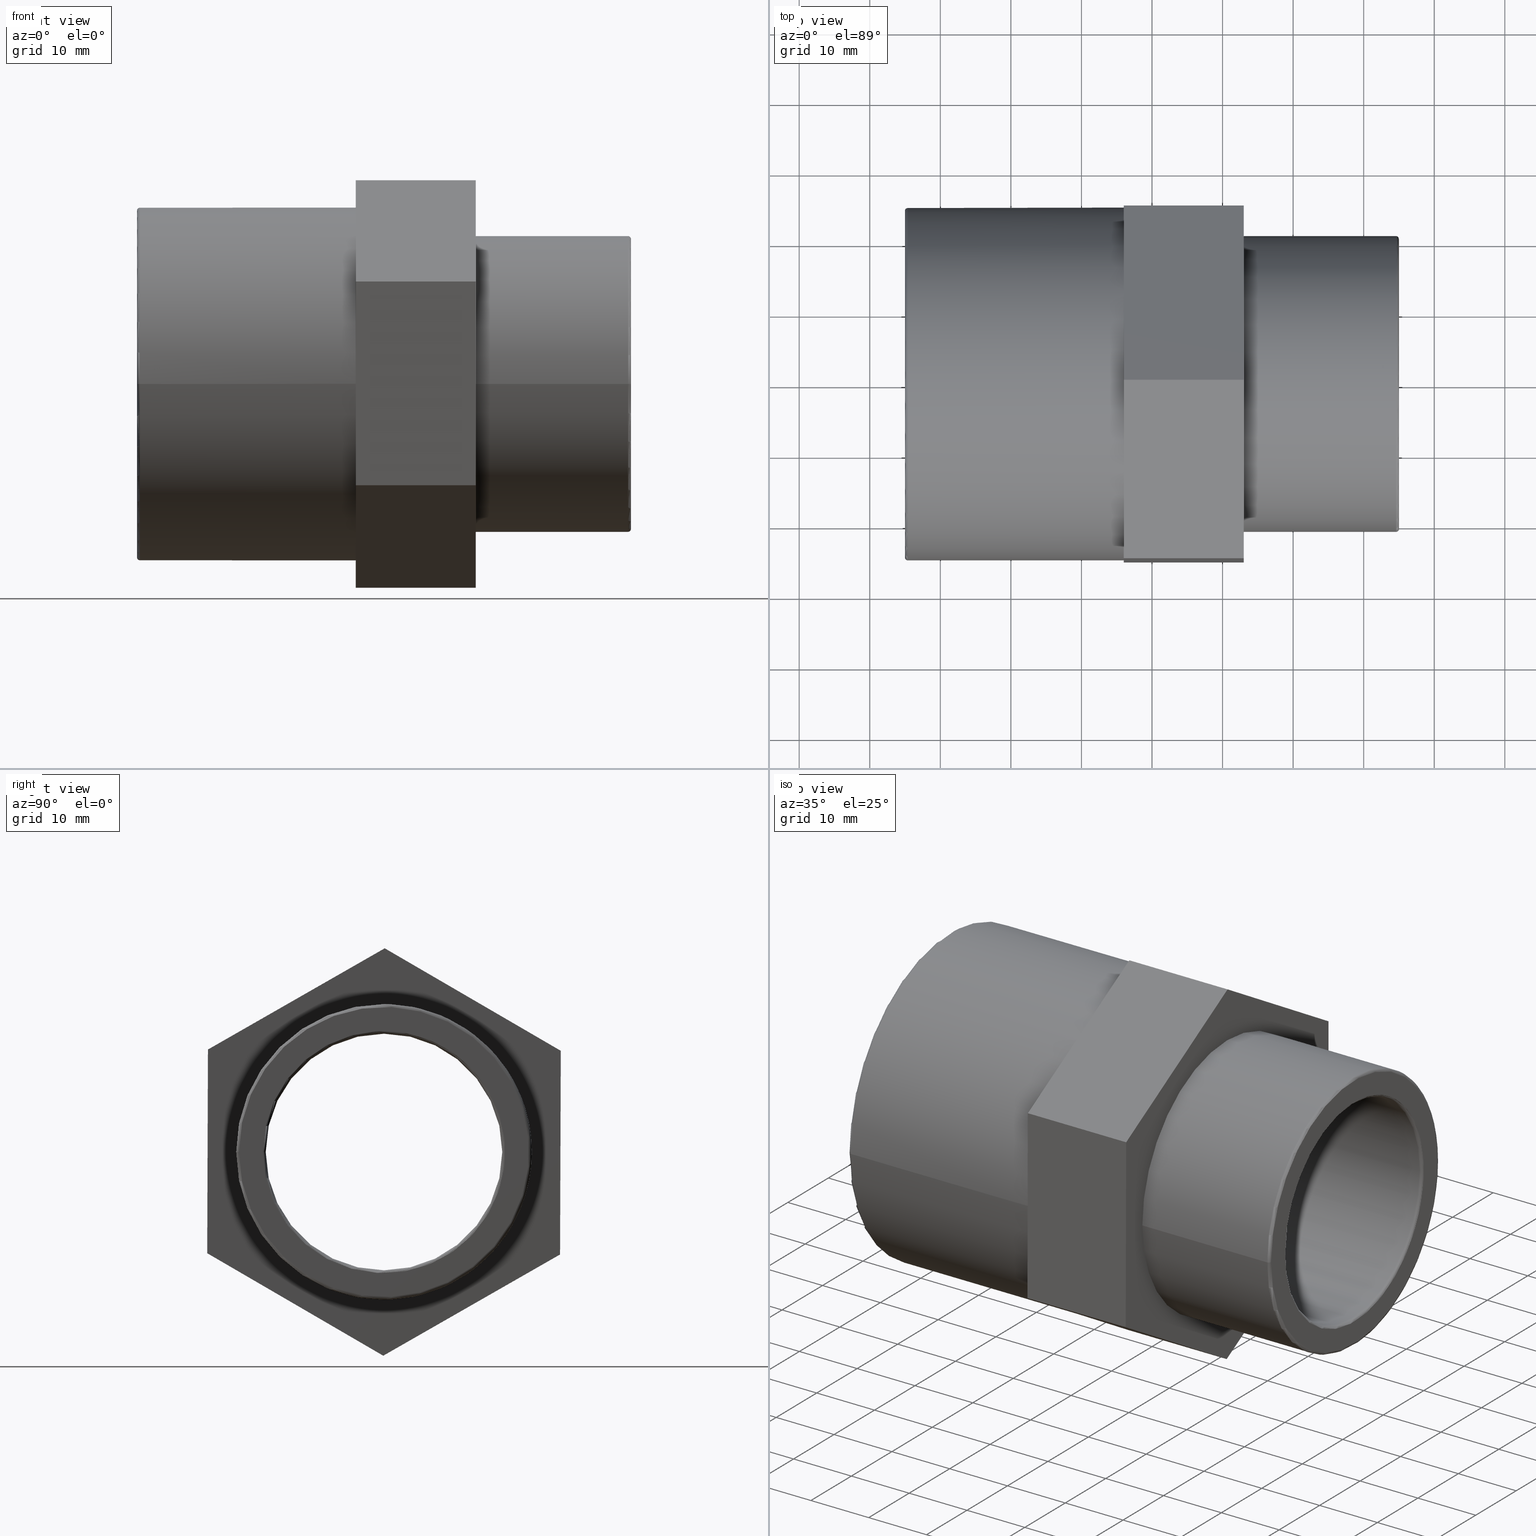
[diagram: canonical four-view strip — front | top / right | iso, engineering-drawing reading convention]
A machine part, canonical four-view strip (front | top / right | iso — engineering-drawing reading convention). The complete STEP part file that produces these views, byte-faithful:
ISO-10303-21;
HEADER;
/* Generated by software containing ST-Developer
 * from STEP Tools, Inc. (www.steptools.com) 
 */

FILE_DESCRIPTION(
/* description */ ('PLASSON SOCKET NIPPLE THR-CE 50(40)-1.1/4"'),
/* implementation_level */ '2;1');

FILE_NAME(
/* name */ 
'C:\\Dropbox\\KIMPROJECTS-Inventor\\99-16-3568-Processing\\PVC Catalog
 2017\\052102\\052102040013.ipt.stp',
/* time_stamp */ '2017-12-07T16:01:54+02:00',
/* author */ ('KIM'),
/* organization */ (''),
/* preprocessor_version */ 'ST-DEVELOPER v15.6',
/* originating_system */ 'Autodesk Inventor 2015',
/* authorisation */ '');

FILE_SCHEMA (('AUTOMOTIVE_DESIGN { 1 0 10303 214 3 1 1 }'));
ENDSEC;

DATA;
#10=MECHANICAL_DESIGN_GEOMETRIC_PRESENTATION_REPRESENTATION('',(#13),#641);
#11=SHAPE_REPRESENTATION_RELATIONSHIP('SRR','None',#650,#12);
#12=ADVANCED_BREP_SHAPE_REPRESENTATION($,(#14),#640);
#13=STYLED_ITEM('',(#659),#14);
#14=MANIFOLD_SOLID_BREP('Solid1',#374);
#15=CYLINDRICAL_SURFACE('',#399,16.764);
#16=CYLINDRICAL_SURFACE('',#403,20.955);
#17=CYLINDRICAL_SURFACE('',#410,20.);
#18=CYLINDRICAL_SURFACE('',#414,25.);
#19=CYLINDRICAL_SURFACE('',#417,19.);
#20=FACE_BOUND('',#96,.T.);
#21=FACE_BOUND('',#98,.T.);
#22=FACE_BOUND('',#100,.T.);
#23=FACE_BOUND('',#102,.T.);
#24=FACE_BOUND('',#104,.T.);
#25=FACE_BOUND('',#106,.T.);
#26=FACE_BOUND('',#108,.T.);
#27=FACE_BOUND('',#110,.T.);
#28=FACE_BOUND('',#112,.T.);
#29=FACE_BOUND('',#114,.T.);
#30=FACE_BOUND('',#116,.T.);
#31=FACE_BOUND('',#118,.T.);
#32=FACE_BOUND('',#120,.T.);
#33=FACE_BOUND('',#122,.T.);
#34=TOROIDAL_SURFACE('',#394,17.164,0.4);
#35=TOROIDAL_SURFACE('',#401,20.555,0.4);
#36=TOROIDAL_SURFACE('',#405,20.4,0.4);
#37=TOROIDAL_SURFACE('',#412,24.6,0.4);
#38=CIRCLE('',#380,25.);
#39=CIRCLE('',#382,25.);
#40=CIRCLE('',#384,25.);
#41=CIRCLE('',#386,25.);
#42=CIRCLE('',#388,25.);
#43=CIRCLE('',#390,25.);
#44=CIRCLE('',#395,16.764);
#45=CIRCLE('',#396,17.164);
#46=CIRCLE('',#398,20.555);
#47=CIRCLE('',#400,16.764);
#48=CIRCLE('',#402,20.955);
#49=CIRCLE('',#404,20.955);
#50=CIRCLE('',#406,20.4);
#51=CIRCLE('',#407,20.);
#52=CIRCLE('',#409,24.6);
#53=CIRCLE('',#411,20.);
#54=CIRCLE('',#413,25.);
#55=CIRCLE('',#416,19.);
#56=CIRCLE('',#418,19.);
#57=FACE_OUTER_BOUND('',#83,.T.);
#58=FACE_OUTER_BOUND('',#84,.T.);
#59=FACE_OUTER_BOUND('',#85,.T.);
#60=FACE_OUTER_BOUND('',#86,.T.);
#61=FACE_OUTER_BOUND('',#87,.T.);
#62=FACE_OUTER_BOUND('',#88,.T.);
#63=FACE_OUTER_BOUND('',#89,.T.);
#64=FACE_OUTER_BOUND('',#90,.T.);
#65=FACE_OUTER_BOUND('',#91,.T.);
#66=FACE_OUTER_BOUND('',#92,.T.);
#67=FACE_OUTER_BOUND('',#93,.T.);
#68=FACE_OUTER_BOUND('',#94,.T.);
#69=FACE_OUTER_BOUND('',#95,.T.);
#70=FACE_OUTER_BOUND('',#97,.T.);
#71=FACE_OUTER_BOUND('',#99,.T.);
#72=FACE_OUTER_BOUND('',#101,.T.);
#73=FACE_OUTER_BOUND('',#103,.T.);
#74=FACE_OUTER_BOUND('',#105,.T.);
#75=FACE_OUTER_BOUND('',#107,.T.);
#76=FACE_OUTER_BOUND('',#109,.T.);
#77=FACE_OUTER_BOUND('',#111,.T.);
#78=FACE_OUTER_BOUND('',#113,.T.);
#79=FACE_OUTER_BOUND('',#115,.T.);
#80=FACE_OUTER_BOUND('',#117,.T.);
#81=FACE_OUTER_BOUND('',#119,.T.);
#82=FACE_OUTER_BOUND('',#121,.T.);
#83=EDGE_LOOP('',(#245,#246,#247,#248,#249));
#84=EDGE_LOOP('',(#250,#251,#252,#253,#254));
#85=EDGE_LOOP('',(#255,#256,#257,#258,#259));
#86=EDGE_LOOP('',(#260,#261,#262));
#87=EDGE_LOOP('',(#263,#264,#265));
#88=EDGE_LOOP('',(#266,#267,#268));
#89=EDGE_LOOP('',(#269,#270,#271));
#90=EDGE_LOOP('',(#272,#273,#274));
#91=EDGE_LOOP('',(#275,#276,#277));
#92=EDGE_LOOP('',(#278,#279,#280,#281,#282));
#93=EDGE_LOOP('',(#283,#284,#285,#286,#287));
#94=EDGE_LOOP('',(#288,#289,#290,#291,#292));
#95=EDGE_LOOP('',(#293));
#96=EDGE_LOOP('',(#294));
#97=EDGE_LOOP('',(#295));
#98=EDGE_LOOP('',(#296));
#99=EDGE_LOOP('',(#297));
#100=EDGE_LOOP('',(#298));
#101=EDGE_LOOP('',(#299));
#102=EDGE_LOOP('',(#300));
#103=EDGE_LOOP('',(#301));
#104=EDGE_LOOP('',(#302));
#105=EDGE_LOOP('',(#303));
#106=EDGE_LOOP('',(#304));
#107=EDGE_LOOP('',(#305));
#108=EDGE_LOOP('',(#306));
#109=EDGE_LOOP('',(#307));
#110=EDGE_LOOP('',(#308));
#111=EDGE_LOOP('',(#309));
#112=EDGE_LOOP('',(#310));
#113=EDGE_LOOP('',(#311,#312,#313,#314,#315,#316));
#114=EDGE_LOOP('',(#317));
#115=EDGE_LOOP('',(#318));
#116=EDGE_LOOP('',(#319));
#117=EDGE_LOOP('',(#320));
#118=EDGE_LOOP('',(#321));
#119=EDGE_LOOP('',(#322));
#120=EDGE_LOOP('',(#323));
#121=EDGE_LOOP('',(#324,#325,#326,#327,#328,#329));
#122=EDGE_LOOP('',(#330));
#123=LINE('',#541,#147);
#124=LINE('',#543,#148);
#125=LINE('',#545,#149);
#126=LINE('',#547,#150);
#127=LINE('',#548,#151);
#128=LINE('',#551,#152);
#129=LINE('',#553,#153);
#130=LINE('',#555,#154);
#131=LINE('',#556,#155);
#132=LINE('',#559,#156);
#133=LINE('',#561,#157);
#134=LINE('',#563,#158);
#135=LINE('',#564,#159);
#136=LINE('',#568,#160);
#137=LINE('',#576,#161);
#138=LINE('',#581,#162);
#139=LINE('',#582,#163);
#140=LINE('',#586,#164);
#141=LINE('',#587,#165);
#142=LINE('',#591,#166);
#143=LINE('',#592,#167);
#144=LINE('',#593,#168);
#145=LINE('',#595,#169);
#146=LINE('',#597,#170);
#147=VECTOR('',#425,28.8675134594813);
#148=VECTOR('',#426,17.);
#149=VECTOR('',#427,14.4337567297406);
#150=VECTOR('',#428,14.4337567297407);
#151=VECTOR('',#429,17.);
#152=VECTOR('',#432,28.8675134594813);
#153=VECTOR('',#433,17.);
#154=VECTOR('',#434,14.4337567297407);
#155=VECTOR('',#435,14.4337567297406);
#156=VECTOR('',#438,28.8675134594813);
#157=VECTOR('',#439,17.);
#158=VECTOR('',#440,14.4337567297406);
#159=VECTOR('',#441,14.4337567297407);
#160=VECTOR('',#446,14.4337567297407);
#161=VECTOR('',#459,14.4337567297407);
#162=VECTOR('',#464,14.4337567297407);
#163=VECTOR('',#465,14.4337567297406);
#164=VECTOR('',#470,14.4337567297407);
#165=VECTOR('',#471,14.4337567297407);
#166=VECTOR('',#474,28.8675134594813);
#167=VECTOR('',#475,17.);
#168=VECTOR('',#476,17.);
#169=VECTOR('',#479,28.8675134594813);
#170=VECTOR('',#482,28.8675134594813);
#171=VERTEX_POINT('',#539);
#172=VERTEX_POINT('',#540);
#173=VERTEX_POINT('',#542);
#174=VERTEX_POINT('',#544);
#175=VERTEX_POINT('',#546);
#176=VERTEX_POINT('',#550);
#177=VERTEX_POINT('',#552);
#178=VERTEX_POINT('',#554);
#179=VERTEX_POINT('',#558);
#180=VERTEX_POINT('',#560);
#181=VERTEX_POINT('',#562);
#182=VERTEX_POINT('',#566);
#183=VERTEX_POINT('',#574);
#184=VERTEX_POINT('',#578);
#185=VERTEX_POINT('',#580);
#186=VERTEX_POINT('',#585);
#187=VERTEX_POINT('',#589);
#188=VERTEX_POINT('',#590);
#189=VERTEX_POINT('',#599);
#190=VERTEX_POINT('',#601);
#191=VERTEX_POINT('',#604);
#192=VERTEX_POINT('',#607);
#193=VERTEX_POINT('',#610);
#194=VERTEX_POINT('',#613);
#195=VERTEX_POINT('',#616);
#196=VERTEX_POINT('',#618);
#197=VERTEX_POINT('',#621);
#198=VERTEX_POINT('',#624);
#199=VERTEX_POINT('',#627);
#200=VERTEX_POINT('',#631);
#201=VERTEX_POINT('',#634);
#202=EDGE_CURVE('',#171,#172,#123,.T.);
#203=EDGE_CURVE('',#173,#172,#124,.T.);
#204=EDGE_CURVE('',#173,#174,#125,.T.);
#205=EDGE_CURVE('',#174,#175,#126,.T.);
#206=EDGE_CURVE('',#175,#171,#127,.T.);
#207=EDGE_CURVE('',#172,#176,#128,.T.);
#208=EDGE_CURVE('',#177,#176,#129,.T.);
#209=EDGE_CURVE('',#177,#178,#130,.T.);
#210=EDGE_CURVE('',#178,#173,#131,.T.);
#211=EDGE_CURVE('',#176,#179,#132,.T.);
#212=EDGE_CURVE('',#180,#179,#133,.T.);
#213=EDGE_CURVE('',#180,#181,#134,.T.);
#214=EDGE_CURVE('',#181,#177,#135,.T.);
#215=EDGE_CURVE('',#181,#182,#38,.T.);
#216=EDGE_CURVE('',#182,#180,#136,.T.);
#217=EDGE_CURVE('',#178,#181,#39,.T.);
#218=EDGE_CURVE('',#174,#178,#40,.T.);
#219=EDGE_CURVE('',#183,#174,#41,.T.);
#220=EDGE_CURVE('',#175,#183,#137,.T.);
#221=EDGE_CURVE('',#184,#183,#42,.T.);
#222=EDGE_CURVE('',#185,#184,#138,.T.);
#223=EDGE_CURVE('',#183,#185,#139,.T.);
#224=EDGE_CURVE('',#182,#184,#43,.T.);
#225=EDGE_CURVE('',#186,#182,#140,.T.);
#226=EDGE_CURVE('',#184,#186,#141,.T.);
#227=EDGE_CURVE('',#187,#188,#142,.T.);
#228=EDGE_CURVE('',#185,#188,#143,.T.);
#229=EDGE_CURVE('',#186,#187,#144,.T.);
#230=EDGE_CURVE('',#188,#171,#145,.T.);
#231=EDGE_CURVE('',#179,#187,#146,.T.);
#232=EDGE_CURVE('',#189,#189,#44,.T.);
#233=EDGE_CURVE('',#190,#190,#45,.T.);
#234=EDGE_CURVE('',#191,#191,#46,.T.);
#235=EDGE_CURVE('',#192,#192,#47,.T.);
#236=EDGE_CURVE('',#193,#193,#48,.T.);
#237=EDGE_CURVE('',#194,#194,#49,.T.);
#238=EDGE_CURVE('',#195,#195,#50,.T.);
#239=EDGE_CURVE('',#196,#196,#51,.T.);
#240=EDGE_CURVE('',#197,#197,#52,.T.);
#241=EDGE_CURVE('',#198,#198,#53,.T.);
#242=EDGE_CURVE('',#199,#199,#54,.T.);
#243=EDGE_CURVE('',#200,#200,#55,.T.);
#244=EDGE_CURVE('',#201,#201,#56,.T.);
#245=ORIENTED_EDGE('',*,*,#202,.T.);
#246=ORIENTED_EDGE('',*,*,#203,.F.);
#247=ORIENTED_EDGE('',*,*,#204,.T.);
#248=ORIENTED_EDGE('',*,*,#205,.T.);
#249=ORIENTED_EDGE('',*,*,#206,.T.);
#250=ORIENTED_EDGE('',*,*,#207,.T.);
#251=ORIENTED_EDGE('',*,*,#208,.F.);
#252=ORIENTED_EDGE('',*,*,#209,.T.);
#253=ORIENTED_EDGE('',*,*,#210,.T.);
#254=ORIENTED_EDGE('',*,*,#203,.T.);
#255=ORIENTED_EDGE('',*,*,#211,.T.);
#256=ORIENTED_EDGE('',*,*,#212,.F.);
#257=ORIENTED_EDGE('',*,*,#213,.T.);
#258=ORIENTED_EDGE('',*,*,#214,.T.);
#259=ORIENTED_EDGE('',*,*,#208,.T.);
#260=ORIENTED_EDGE('',*,*,#215,.F.);
#261=ORIENTED_EDGE('',*,*,#213,.F.);
#262=ORIENTED_EDGE('',*,*,#216,.F.);
#263=ORIENTED_EDGE('',*,*,#217,.F.);
#264=ORIENTED_EDGE('',*,*,#209,.F.);
#265=ORIENTED_EDGE('',*,*,#214,.F.);
#266=ORIENTED_EDGE('',*,*,#218,.F.);
#267=ORIENTED_EDGE('',*,*,#204,.F.);
#268=ORIENTED_EDGE('',*,*,#210,.F.);
#269=ORIENTED_EDGE('',*,*,#219,.F.);
#270=ORIENTED_EDGE('',*,*,#220,.F.);
#271=ORIENTED_EDGE('',*,*,#205,.F.);
#272=ORIENTED_EDGE('',*,*,#221,.F.);
#273=ORIENTED_EDGE('',*,*,#222,.F.);
#274=ORIENTED_EDGE('',*,*,#223,.F.);
#275=ORIENTED_EDGE('',*,*,#224,.F.);
#276=ORIENTED_EDGE('',*,*,#225,.F.);
#277=ORIENTED_EDGE('',*,*,#226,.F.);
#278=ORIENTED_EDGE('',*,*,#227,.T.);
#279=ORIENTED_EDGE('',*,*,#228,.F.);
#280=ORIENTED_EDGE('',*,*,#222,.T.);
#281=ORIENTED_EDGE('',*,*,#226,.T.);
#282=ORIENTED_EDGE('',*,*,#229,.T.);
#283=ORIENTED_EDGE('',*,*,#230,.T.);
#284=ORIENTED_EDGE('',*,*,#206,.F.);
#285=ORIENTED_EDGE('',*,*,#220,.T.);
#286=ORIENTED_EDGE('',*,*,#223,.T.);
#287=ORIENTED_EDGE('',*,*,#228,.T.);
#288=ORIENTED_EDGE('',*,*,#231,.T.);
#289=ORIENTED_EDGE('',*,*,#229,.F.);
#290=ORIENTED_EDGE('',*,*,#225,.T.);
#291=ORIENTED_EDGE('',*,*,#216,.T.);
#292=ORIENTED_EDGE('',*,*,#212,.T.);
#293=ORIENTED_EDGE('',*,*,#232,.T.);
#294=ORIENTED_EDGE('',*,*,#233,.T.);
#295=ORIENTED_EDGE('',*,*,#234,.F.);
#296=ORIENTED_EDGE('',*,*,#233,.F.);
#297=ORIENTED_EDGE('',*,*,#235,.T.);
#298=ORIENTED_EDGE('',*,*,#232,.F.);
#299=ORIENTED_EDGE('',*,*,#234,.T.);
#300=ORIENTED_EDGE('',*,*,#236,.T.);
#301=ORIENTED_EDGE('',*,*,#237,.F.);
#302=ORIENTED_EDGE('',*,*,#236,.F.);
#303=ORIENTED_EDGE('',*,*,#238,.T.);
#304=ORIENTED_EDGE('',*,*,#239,.T.);
#305=ORIENTED_EDGE('',*,*,#240,.F.);
#306=ORIENTED_EDGE('',*,*,#238,.F.);
#307=ORIENTED_EDGE('',*,*,#241,.F.);
#308=ORIENTED_EDGE('',*,*,#239,.F.);
#309=ORIENTED_EDGE('',*,*,#242,.T.);
#310=ORIENTED_EDGE('',*,*,#240,.T.);
#311=ORIENTED_EDGE('',*,*,#215,.T.);
#312=ORIENTED_EDGE('',*,*,#224,.T.);
#313=ORIENTED_EDGE('',*,*,#221,.T.);
#314=ORIENTED_EDGE('',*,*,#219,.T.);
#315=ORIENTED_EDGE('',*,*,#218,.T.);
#316=ORIENTED_EDGE('',*,*,#217,.T.);
#317=ORIENTED_EDGE('',*,*,#242,.F.);
#318=ORIENTED_EDGE('',*,*,#241,.T.);
#319=ORIENTED_EDGE('',*,*,#243,.F.);
#320=ORIENTED_EDGE('',*,*,#244,.F.);
#321=ORIENTED_EDGE('',*,*,#243,.T.);
#322=ORIENTED_EDGE('',*,*,#244,.T.);
#323=ORIENTED_EDGE('',*,*,#235,.F.);
#324=ORIENTED_EDGE('',*,*,#230,.F.);
#325=ORIENTED_EDGE('',*,*,#227,.F.);
#326=ORIENTED_EDGE('',*,*,#231,.F.);
#327=ORIENTED_EDGE('',*,*,#211,.F.);
#328=ORIENTED_EDGE('',*,*,#207,.F.);
#329=ORIENTED_EDGE('',*,*,#202,.F.);
#330=ORIENTED_EDGE('',*,*,#237,.T.);
#331=PLANE('',#376);
#332=PLANE('',#377);
#333=PLANE('',#378);
#334=PLANE('',#379);
#335=PLANE('',#381);
#336=PLANE('',#383);
#337=PLANE('',#385);
#338=PLANE('',#387);
#339=PLANE('',#389);
#340=PLANE('',#391);
#341=PLANE('',#392);
#342=PLANE('',#393);
#343=PLANE('',#397);
#344=PLANE('',#408);
#345=PLANE('',#415);
#346=PLANE('',#419);
#347=PLANE('',#420);
#348=ADVANCED_FACE('',(#57),#331,.T.);
#349=ADVANCED_FACE('',(#58),#332,.T.);
#350=ADVANCED_FACE('',(#59),#333,.T.);
#351=ADVANCED_FACE('',(#60),#334,.F.);
#352=ADVANCED_FACE('',(#61),#335,.F.);
#353=ADVANCED_FACE('',(#62),#336,.F.);
#354=ADVANCED_FACE('',(#63),#337,.F.);
#355=ADVANCED_FACE('',(#64),#338,.F.);
#356=ADVANCED_FACE('',(#65),#339,.F.);
#357=ADVANCED_FACE('',(#66),#340,.T.);
#358=ADVANCED_FACE('',(#67),#341,.T.);
#359=ADVANCED_FACE('',(#68),#342,.T.);
#360=ADVANCED_FACE('',(#69,#20),#34,.T.);
#361=ADVANCED_FACE('',(#70,#21),#343,.T.);
#362=ADVANCED_FACE('',(#71,#22),#15,.F.);
#363=ADVANCED_FACE('',(#72,#23),#35,.T.);
#364=ADVANCED_FACE('',(#73,#24),#16,.T.);
#365=ADVANCED_FACE('',(#74,#25),#36,.T.);
#366=ADVANCED_FACE('',(#75,#26),#344,.T.);
#367=ADVANCED_FACE('',(#76,#27),#17,.F.);
#368=ADVANCED_FACE('',(#77,#28),#37,.T.);
#369=ADVANCED_FACE('',(#78,#29),#18,.T.);
#370=ADVANCED_FACE('',(#79,#30),#345,.T.);
#371=ADVANCED_FACE('',(#80,#31),#19,.F.);
#372=ADVANCED_FACE('',(#81,#32),#346,.T.);
#373=ADVANCED_FACE('',(#82,#33),#347,.T.);
#374=CLOSED_SHELL('',(#348,#349,#350,#351,#352,#353,#354,#355,#356,#357,
#358,#359,#360,#361,#362,#363,#364,#365,#366,#367,#368,#369,#370,#371,#372,
#373));
#375=AXIS2_PLACEMENT_3D('placement',#537,#421,#422);
#376=AXIS2_PLACEMENT_3D('',#538,#423,#424);
#377=AXIS2_PLACEMENT_3D('',#549,#430,#431);
#378=AXIS2_PLACEMENT_3D('',#557,#436,#437);
#379=AXIS2_PLACEMENT_3D('',#565,#442,#443);
#380=AXIS2_PLACEMENT_3D('',#567,#444,#445);
#381=AXIS2_PLACEMENT_3D('',#569,#447,#448);
#382=AXIS2_PLACEMENT_3D('',#570,#449,#450);
#383=AXIS2_PLACEMENT_3D('',#571,#451,#452);
#384=AXIS2_PLACEMENT_3D('',#572,#453,#454);
#385=AXIS2_PLACEMENT_3D('',#573,#455,#456);
#386=AXIS2_PLACEMENT_3D('',#575,#457,#458);
#387=AXIS2_PLACEMENT_3D('',#577,#460,#461);
#388=AXIS2_PLACEMENT_3D('',#579,#462,#463);
#389=AXIS2_PLACEMENT_3D('',#583,#466,#467);
#390=AXIS2_PLACEMENT_3D('',#584,#468,#469);
#391=AXIS2_PLACEMENT_3D('',#588,#472,#473);
#392=AXIS2_PLACEMENT_3D('',#594,#477,#478);
#393=AXIS2_PLACEMENT_3D('',#596,#480,#481);
#394=AXIS2_PLACEMENT_3D('',#598,#483,#484);
#395=AXIS2_PLACEMENT_3D('',#600,#485,#486);
#396=AXIS2_PLACEMENT_3D('',#602,#487,#488);
#397=AXIS2_PLACEMENT_3D('',#603,#489,#490);
#398=AXIS2_PLACEMENT_3D('',#605,#491,#492);
#399=AXIS2_PLACEMENT_3D('',#606,#493,#494);
#400=AXIS2_PLACEMENT_3D('',#608,#495,#496);
#401=AXIS2_PLACEMENT_3D('',#609,#497,#498);
#402=AXIS2_PLACEMENT_3D('',#611,#499,#500);
#403=AXIS2_PLACEMENT_3D('',#612,#501,#502);
#404=AXIS2_PLACEMENT_3D('',#614,#503,#504);
#405=AXIS2_PLACEMENT_3D('',#615,#505,#506);
#406=AXIS2_PLACEMENT_3D('',#617,#507,#508);
#407=AXIS2_PLACEMENT_3D('',#619,#509,#510);
#408=AXIS2_PLACEMENT_3D('',#620,#511,#512);
#409=AXIS2_PLACEMENT_3D('',#622,#513,#514);
#410=AXIS2_PLACEMENT_3D('',#623,#515,#516);
#411=AXIS2_PLACEMENT_3D('',#625,#517,#518);
#412=AXIS2_PLACEMENT_3D('',#626,#519,#520);
#413=AXIS2_PLACEMENT_3D('',#628,#521,#522);
#414=AXIS2_PLACEMENT_3D('',#629,#523,#524);
#415=AXIS2_PLACEMENT_3D('',#630,#525,#526);
#416=AXIS2_PLACEMENT_3D('',#632,#527,#528);
#417=AXIS2_PLACEMENT_3D('',#633,#529,#530);
#418=AXIS2_PLACEMENT_3D('',#635,#531,#532);
#419=AXIS2_PLACEMENT_3D('',#636,#533,#534);
#420=AXIS2_PLACEMENT_3D('',#637,#535,#536);
#421=DIRECTION('axis',(0.,0.,1.));
#422=DIRECTION('refdir',(1.,0.,0.));
#423=DIRECTION('center_axis',(6.96605962739337E-16,-0.999993450406666,0.00361927392861327));
#424=DIRECTION('ref_axis',(0.,-0.00361927392861325,-0.999993450406666));
#425=DIRECTION('',(-2.43778272755254E-18,0.00361927392861327,0.999993450406666));
#426=DIRECTION('',(1.,6.9661052525499E-16,0.));
#427=DIRECTION('',(2.43778272755254E-18,-0.00361927392861327,-0.999993450406666));
#428=DIRECTION('',(2.43778272755254E-18,-0.00361927392861327,-0.999993450406666));
#429=DIRECTION('',(1.,6.9661052525499E-16,0.));
#430=DIRECTION('center_axis',(3.46119537066446E-16,-0.496862342037901,0.867829368634533));
#431=DIRECTION('ref_axis',(6.21724893790088E-16,-0.867829368634533,-0.496862342037901));
#432=DIRECTION('',(-5.84531452177392E-16,0.867829368634533,0.496862342037901));
#433=DIRECTION('',(1.,6.9661052525499E-16,0.));
#434=DIRECTION('',(5.84531452177392E-16,-0.867829368634533,-0.496862342037901));
#435=DIRECTION('',(5.84531452177392E-16,-0.867829368634533,-0.496862342037901));
#436=DIRECTION('center_axis',(-3.50486425672891E-16,0.503131108368766,0.864210094705921));
#437=DIRECTION('ref_axis',(6.21724893790088E-16,-0.864210094705921,0.503131108368766));
#438=DIRECTION('',(-5.8209366944984E-16,0.864210094705921,-0.503131108368766));
#439=DIRECTION('',(1.,6.9661052525499E-16,0.));
#440=DIRECTION('',(5.8209366944984E-16,-0.864210094705921,0.503131108368766));
#441=DIRECTION('',(5.8209366944984E-16,-0.864210094705921,0.503131108368766));
#442=DIRECTION('center_axis',(1.,6.73555739531044E-16,3.25955538390483E-32));
#443=DIRECTION('ref_axis',(0.,0.,-1.));
#444=DIRECTION('center_axis',(-1.,-6.73555739531044E-16,-3.25955538390483E-32));
#445=DIRECTION('ref_axis',(6.66133814775094E-16,-1.,0.));
#446=DIRECTION('',(-2.4377827275516E-18,0.00361927392861188,0.999993450406666));
#447=DIRECTION('center_axis',(1.,6.73555739531044E-16,3.25955538390483E-32));
#448=DIRECTION('ref_axis',(0.,0.,-1.));
#449=DIRECTION('center_axis',(-1.,-6.73555739531044E-16,-3.25955538390483E-32));
#450=DIRECTION('ref_axis',(6.66133814775094E-16,-1.,0.));
#451=DIRECTION('center_axis',(1.,6.73555739531044E-16,3.25955538390483E-32));
#452=DIRECTION('ref_axis',(0.,0.,-1.));
#453=DIRECTION('center_axis',(-1.,-6.73555739531044E-16,-3.25955538390483E-32));
#454=DIRECTION('ref_axis',(6.66133814775094E-16,-1.,0.));
#455=DIRECTION('center_axis',(1.,6.73555739531044E-16,3.25955538390483E-32));
#456=DIRECTION('ref_axis',(0.,0.,-1.));
#457=DIRECTION('center_axis',(-1.,-6.73555739531044E-16,-3.25955538390483E-32));
#458=DIRECTION('ref_axis',(6.66133814775094E-16,-1.,0.));
#459=DIRECTION('',(-5.8209366944984E-16,0.864210094705921,-0.503131108368766));
#460=DIRECTION('center_axis',(1.,6.73555739531044E-16,3.25955538390483E-32));
#461=DIRECTION('ref_axis',(0.,0.,-1.));
#462=DIRECTION('center_axis',(-1.,-6.73555739531044E-16,-3.25955538390483E-32));
#463=DIRECTION('ref_axis',(6.66133814775094E-16,-1.,0.));
#464=DIRECTION('',(-5.84531452177392E-16,0.867829368634533,0.4968623420379));
#465=DIRECTION('',(-5.8209366944984E-16,0.864210094705921,-0.503131108368766));
#466=DIRECTION('center_axis',(1.,6.73555739531044E-16,3.25955538390483E-32));
#467=DIRECTION('ref_axis',(0.,0.,-1.));
#468=DIRECTION('center_axis',(-1.,-6.73555739531044E-16,-3.25955538390483E-32));
#469=DIRECTION('ref_axis',(6.66133814775094E-16,-1.,0.));
#470=DIRECTION('',(-2.4377827275516E-18,0.00361927392861188,0.999993450406666));
#471=DIRECTION('',(-5.84531452177392E-16,0.867829368634533,0.4968623420379));
#472=DIRECTION('center_axis',(-3.46119537066446E-16,0.4968623420379,-0.867829368634533));
#473=DIRECTION('ref_axis',(-6.21724893790088E-16,0.867829368634533,0.4968623420379));
#474=DIRECTION('',(5.84531452177392E-16,-0.867829368634533,-0.4968623420379));
#475=DIRECTION('',(1.,6.9661052525499E-16,0.));
#476=DIRECTION('',(1.,6.9661052525499E-16,0.));
#477=DIRECTION('center_axis',(3.50486425672891E-16,-0.503131108368766,-0.864210094705921));
#478=DIRECTION('ref_axis',(-6.21724893790088E-16,0.864210094705921,-0.503131108368766));
#479=DIRECTION('',(5.8209366944984E-16,-0.864210094705921,0.503131108368766));
#480=DIRECTION('center_axis',(-6.96605962739337E-16,0.999993450406666,-0.00361927392861188));
#481=DIRECTION('ref_axis',(0.,0.00361927392861183,0.999993450406666));
#482=DIRECTION('',(2.4377827275516E-18,-0.00361927392861188,-0.999993450406666));
#483=DIRECTION('center_axis',(-1.,-6.73555739531044E-16,0.));
#484=DIRECTION('ref_axis',(0.,0.,1.));
#485=DIRECTION('center_axis',(-1.,-6.73555739531044E-16,0.));
#486=DIRECTION('ref_axis',(-6.74683671162537E-16,1.,6.12323399573677E-17));
#487=DIRECTION('center_axis',(1.,6.73555739531044E-16,0.));
#488=DIRECTION('ref_axis',(-6.73555739531044E-16,1.,6.12323399573676E-17));
#489=DIRECTION('center_axis',(1.,6.73555739531044E-16,0.));
#490=DIRECTION('ref_axis',(0.,0.,-1.));
#491=DIRECTION('center_axis',(-1.,-6.73555739531044E-16,0.));
#492=DIRECTION('ref_axis',(-6.73555739531044E-16,1.,6.12323399573677E-17));
#493=DIRECTION('center_axis',(-1.,-6.73555739531044E-16,0.));
#494=DIRECTION('ref_axis',(6.66133814775094E-16,-1.,0.));
#495=DIRECTION('center_axis',(-1.,-6.73555739531044E-16,0.));
#496=DIRECTION('ref_axis',(0.,0.,1.));
#497=DIRECTION('center_axis',(-1.,-6.73555739531044E-16,0.));
#498=DIRECTION('ref_axis',(0.,0.,1.));
#499=DIRECTION('center_axis',(1.,6.73555739531044E-16,0.));
#500=DIRECTION('ref_axis',(-6.72200172986479E-16,1.,6.12323399573677E-17));
#501=DIRECTION('center_axis',(-1.,-6.73555739531044E-16,0.));
#502=DIRECTION('ref_axis',(6.66133814775094E-16,-1.,0.));
#503=DIRECTION('center_axis',(-1.,-6.73555739531044E-16,0.));
#504=DIRECTION('ref_axis',(0.,0.,1.));
#505=DIRECTION('center_axis',(-1.,-6.73555739531044E-16,0.));
#506=DIRECTION('ref_axis',(0.,0.,1.));
#507=DIRECTION('center_axis',(-1.,-6.73555739531044E-16,0.));
#508=DIRECTION('ref_axis',(-6.73555739531044E-16,1.,6.12323399573677E-17));
#509=DIRECTION('center_axis',(1.,6.73555739531044E-16,0.));
#510=DIRECTION('ref_axis',(-6.73072708679001E-16,1.,6.12323399573677E-17));
#511=DIRECTION('center_axis',(-1.,-6.73555739531044E-16,0.));
#512=DIRECTION('ref_axis',(0.,0.,1.));
#513=DIRECTION('center_axis',(1.,6.73555739531044E-16,0.));
#514=DIRECTION('ref_axis',(-6.73555739531044E-16,1.,6.12323399573676E-17));
#515=DIRECTION('center_axis',(-1.,-6.73555739531044E-16,0.));
#516=DIRECTION('ref_axis',(6.66133814775094E-16,-1.,0.));
#517=DIRECTION('center_axis',(-1.,-6.73555739531044E-16,0.));
#518=DIRECTION('ref_axis',(0.,0.,1.));
#519=DIRECTION('center_axis',(-1.,-6.73555739531044E-16,0.));
#520=DIRECTION('ref_axis',(0.,0.,1.));
#521=DIRECTION('center_axis',(-1.,-6.73555739531044E-16,0.));
#522=DIRECTION('ref_axis',(-6.74460487459783E-16,1.,6.12323399573677E-17));
#523=DIRECTION('center_axis',(-1.,-6.73555739531044E-16,0.));
#524=DIRECTION('ref_axis',(6.66133814775094E-16,-1.,0.));
#525=DIRECTION('center_axis',(-1.,-6.73555739531044E-16,0.));
#526=DIRECTION('ref_axis',(0.,0.,1.));
#527=DIRECTION('center_axis',(-1.,-6.73555739531044E-16,0.));
#528=DIRECTION('ref_axis',(0.,0.,1.));
#529=DIRECTION('center_axis',(-1.,-6.73555739531044E-16,0.));
#530=DIRECTION('ref_axis',(6.66133814775094E-16,-1.,0.));
#531=DIRECTION('center_axis',(-1.,-6.73555739531044E-16,0.));
#532=DIRECTION('ref_axis',(0.,0.,1.));
#533=DIRECTION('center_axis',(-1.,-6.73555739531044E-16,0.));
#534=DIRECTION('ref_axis',(0.,0.,1.));
#535=DIRECTION('center_axis',(1.,6.73555739531044E-16,0.));
#536=DIRECTION('ref_axis',(0.,0.,-1.));
#537=CARTESIAN_POINT('',(0.,0.,0.));
#538=CARTESIAN_POINT('Origin',(-4.,-24.9475965407428,14.5241440427191));
#539=CARTESIAN_POINT('',(13.,-25.0520759795906,-14.3431803462885));
#540=CARTESIAN_POINT('',(13.,-24.9475965407428,14.5241440427191));
#541=CARTESIAN_POINT('',(13.,-24.9737164004547,7.30731294546721));
#542=CARTESIAN_POINT('',(-4.,-24.9475965407428,14.5241440427191));
#543=CARTESIAN_POINT('',(-4.,-24.9475965407428,14.5241440427191));
#544=CARTESIAN_POINT('',(-4.,-24.9998362601667,0.0904818482153302));
#545=CARTESIAN_POINT('',(-4.,-24.9475965407428,14.5241440427191));
#546=CARTESIAN_POINT('',(-4.,-25.0520759795906,-14.3431803462885));
#547=CARTESIAN_POINT('',(-4.,-24.9475965407428,14.5241440427191));
#548=CARTESIAN_POINT('',(-4.,-25.0520759795906,-14.3431803462885));
#549=CARTESIAN_POINT('Origin',(-4.00000000000001,0.104479438847777,28.8673243890076));
#550=CARTESIAN_POINT('',(13.,0.104479438847789,28.8673243890076));
#551=CARTESIAN_POINT('',(13.,-6.15853955604986,25.2815293024355));
#552=CARTESIAN_POINT('',(-4.00000000000001,0.104479438847777,28.8673243890076));
#553=CARTESIAN_POINT('',(-4.00000000000001,0.104479438847777,28.8673243890076));
#554=CARTESIAN_POINT('',(-4.,-12.4215585509475,21.6957342158633));
#555=CARTESIAN_POINT('',(-4.00000000000001,0.104479438847777,28.8673243890076));
#556=CARTESIAN_POINT('',(-4.00000000000001,0.104479438847777,28.8673243890076));
#557=CARTESIAN_POINT('Origin',(-4.00000000000003,25.0520759795906,14.3431803462885));
#558=CARTESIAN_POINT('',(13.,25.0520759795906,14.3431803462885));
#559=CARTESIAN_POINT('',(13.,18.8151768444049,17.9742163569683));
#560=CARTESIAN_POINT('',(-4.00000000000003,25.0520759795906,14.3431803462885));
#561=CARTESIAN_POINT('',(-4.00000000000003,25.0520759795906,14.3431803462885));
#562=CARTESIAN_POINT('',(-4.00000000000002,12.5782777092192,21.605252367648));
#563=CARTESIAN_POINT('',(-4.00000000000003,25.0520759795906,14.3431803462885));
#564=CARTESIAN_POINT('',(-4.00000000000003,25.0520759795906,14.3431803462885));
#565=CARTESIAN_POINT('Origin',(-4.00000000000001,4.23051791004384E-15,3.84592537276713E-16));
#566=CARTESIAN_POINT('',(-4.00000000000003,24.9998362601667,-0.0904818482152971));
#567=CARTESIAN_POINT('Origin',(-4.00000000000001,3.73517273739942E-15,0.));
#568=CARTESIAN_POINT('',(-4.00000000000003,24.9475965407428,-14.5241440427191));
#569=CARTESIAN_POINT('Origin',(-4.00000000000001,4.23051791004384E-15,3.84592537276713E-16));
#570=CARTESIAN_POINT('Origin',(-4.00000000000001,3.73517273739942E-15,0.));
#571=CARTESIAN_POINT('Origin',(-4.00000000000001,4.23051791004384E-15,3.84592537276713E-16));
#572=CARTESIAN_POINT('Origin',(-4.00000000000001,3.73517273739942E-15,0.));
#573=CARTESIAN_POINT('Origin',(-4.00000000000001,4.23051791004384E-15,3.84592537276713E-16));
#574=CARTESIAN_POINT('',(-4.,-12.5782777092192,-21.605252367648));
#575=CARTESIAN_POINT('Origin',(-4.00000000000001,3.73517273739942E-15,0.));
#576=CARTESIAN_POINT('',(-4.,-25.0520759795906,-14.3431803462885));
#577=CARTESIAN_POINT('Origin',(-4.00000000000001,4.23051791004384E-15,3.84592537276713E-16));
#578=CARTESIAN_POINT('',(-4.00000000000002,12.4215585509475,-21.6957342158633));
#579=CARTESIAN_POINT('Origin',(-4.00000000000001,3.73517273739942E-15,0.));
#580=CARTESIAN_POINT('',(-4.00000000000001,-0.104479438847769,-28.8673243890076));
#581=CARTESIAN_POINT('',(-4.00000000000001,-0.104479438847769,-28.8673243890076));
#582=CARTESIAN_POINT('',(-4.,-25.0520759795906,-14.3431803462885));
#583=CARTESIAN_POINT('Origin',(-4.00000000000001,4.23051791004384E-15,3.84592537276713E-16));
#584=CARTESIAN_POINT('Origin',(-4.00000000000001,3.73517273739942E-15,0.));
#585=CARTESIAN_POINT('',(-4.00000000000003,24.9475965407428,-14.5241440427191));
#586=CARTESIAN_POINT('',(-4.00000000000003,24.9475965407428,-14.5241440427191));
#587=CARTESIAN_POINT('',(-4.00000000000001,-0.104479438847769,-28.8673243890076));
#588=CARTESIAN_POINT('Origin',(-4.00000000000001,-0.104479438847769,-28.8673243890076));
#589=CARTESIAN_POINT('',(13.,24.9475965407428,-14.5241440427191));
#590=CARTESIAN_POINT('',(13.,-0.104479438847757,-28.8673243890076));
#591=CARTESIAN_POINT('',(13.,6.15853955604988,-25.2815293024355));
#592=CARTESIAN_POINT('',(-4.00000000000001,-0.104479438847769,-28.8673243890076));
#593=CARTESIAN_POINT('',(-4.00000000000003,24.9475965407428,-14.5241440427191));
#594=CARTESIAN_POINT('Origin',(-4.,-25.0520759795906,-14.3431803462885));
#595=CARTESIAN_POINT('',(13.,-18.8151768444049,-17.9742163569683));
#596=CARTESIAN_POINT('Origin',(-4.00000000000003,24.9998362601667,-0.0904818482152958));
#597=CARTESIAN_POINT('',(13.,24.9998362601667,-0.0904818482152943));
#598=CARTESIAN_POINT('Origin',(34.6,2.97344242832977E-14,0.));
#599=CARTESIAN_POINT('',(34.6,-16.764,1.02649894704531E-15));
#600=CARTESIAN_POINT('Origin',(34.6,2.97344242832977E-14,0.));
#601=CARTESIAN_POINT('',(35.,-17.164,-3.15297564908478E-15));
#602=CARTESIAN_POINT('Origin',(35.,3.00038465791102E-14,0.));
#603=CARTESIAN_POINT('Origin',(35.,-20.955,0.));
#604=CARTESIAN_POINT('',(35.,-20.555,1.25863074782369E-15));
#605=CARTESIAN_POINT('Origin',(35.,3.00038465791102E-14,0.));
#606=CARTESIAN_POINT('Origin',(21.8,2.11129108173004E-14,0.));
#607=CARTESIAN_POINT('',(8.60000000000002,-16.764,0.));
#608=CARTESIAN_POINT('Origin',(8.60000000000001,1.22219750554906E-14,0.));
#609=CARTESIAN_POINT('Origin',(34.6,2.97344242832977E-14,0.));
#610=CARTESIAN_POINT('',(34.6,-20.955,-3.84937105141992E-15));
#611=CARTESIAN_POINT('Origin',(34.6,2.97344242832977E-14,0.));
#612=CARTESIAN_POINT('Origin',(24.,2.25947334442687E-14,0.));
#613=CARTESIAN_POINT('',(13.,-20.955,0.));
#614=CARTESIAN_POINT('Origin',(13.,1.51856203094272E-14,0.));
#615=CARTESIAN_POINT('Origin',(-34.6,-1.68756328922505E-14,0.));
#616=CARTESIAN_POINT('',(-35.,-20.4,1.2491397351303E-15));
#617=CARTESIAN_POINT('Origin',(-35.,-1.71450551880629E-14,0.));
#618=CARTESIAN_POINT('',(-34.6,-20.,-3.67394039744206E-15));
#619=CARTESIAN_POINT('Origin',(-34.6,-1.68756328922505E-14,0.));
#620=CARTESIAN_POINT('Origin',(-35.,-20.,0.));
#621=CARTESIAN_POINT('',(-35.,-24.6,-4.51894668885373E-15));
#622=CARTESIAN_POINT('Origin',(-35.,-1.71450551880629E-14,0.));
#623=CARTESIAN_POINT('Origin',(-22.,-8.38883057415938E-15,0.));
#624=CARTESIAN_POINT('',(-9.,-20.,0.));
#625=CARTESIAN_POINT('Origin',(-9.00000000000001,3.67394039744199E-16,0.));
#626=CARTESIAN_POINT('Origin',(-34.6,-1.68756328922505E-14,0.));
#627=CARTESIAN_POINT('',(-34.6,-25.,1.53080849893419E-15));
#628=CARTESIAN_POINT('Origin',(-34.6,-1.68756328922505E-14,0.));
#629=CARTESIAN_POINT('Origin',(-19.5,-6.70494122533177E-15,0.));
#630=CARTESIAN_POINT('Origin',(-9.,-19.,0.));
#631=CARTESIAN_POINT('',(-9.,-19.,0.));
#632=CARTESIAN_POINT('Origin',(-9.00000000000001,3.67394039744199E-16,0.));
#633=CARTESIAN_POINT('Origin',(-0.200000000000005,6.29468454761739E-15,
0.));
#634=CARTESIAN_POINT('',(8.60000000000002,-19.,0.));
#635=CARTESIAN_POINT('Origin',(8.60000000000001,1.22219750554906E-14,0.));
#636=CARTESIAN_POINT('Origin',(8.60000000000002,-16.764,0.));
#637=CARTESIAN_POINT('Origin',(13.,-25.,0.));
#638=UNCERTAINTY_MEASURE_WITH_UNIT(LENGTH_MEASURE(0.01),#642,
'DISTANCE_ACCURACY_VALUE',
'Maximum model space distance between geometric entities at asserted c
onnectivities');
#639=UNCERTAINTY_MEASURE_WITH_UNIT(LENGTH_MEASURE(1.E-6),#642,
'DISTANCE_ACCURACY_VALUE',
'Maximum model space distance between geometric entities at asserted c
onnectivities');
#640=(
GEOMETRIC_REPRESENTATION_CONTEXT(3)
GLOBAL_UNCERTAINTY_ASSIGNED_CONTEXT((#638))
GLOBAL_UNIT_ASSIGNED_CONTEXT((#642,#645,#643))
REPRESENTATION_CONTEXT('','3D')
);
#641=(
GEOMETRIC_REPRESENTATION_CONTEXT(3)
GLOBAL_UNCERTAINTY_ASSIGNED_CONTEXT((#639))
GLOBAL_UNIT_ASSIGNED_CONTEXT((#642,#645,#643))
REPRESENTATION_CONTEXT('','3D')
);
#642=(
LENGTH_UNIT()
NAMED_UNIT(*)
SI_UNIT(.MILLI.,.METRE.)
);
#643=(
NAMED_UNIT(*)
SI_UNIT($,.STERADIAN.)
SOLID_ANGLE_UNIT()
);
#644=DIMENSIONAL_EXPONENTS(0.,0.,0.,0.,0.,0.,0.);
#645=(
CONVERSION_BASED_UNIT('degree',#647)
NAMED_UNIT(#644)
PLANE_ANGLE_UNIT()
);
#646=(
NAMED_UNIT(*)
PLANE_ANGLE_UNIT()
SI_UNIT($,.RADIAN.)
);
#647=PLANE_ANGLE_MEASURE_WITH_UNIT(PLANE_ANGLE_MEASURE(0.01745329252),#646);
#648=SHAPE_DEFINITION_REPRESENTATION(#649,#650);
#649=PRODUCT_DEFINITION_SHAPE('',$,#652);
#650=SHAPE_REPRESENTATION('',(#375),#640);
#651=PRODUCT_DEFINITION_CONTEXT('part definition',#656,'design');
#652=PRODUCT_DEFINITION('052102040013','052102040013',#653,#651);
#653=PRODUCT_DEFINITION_FORMATION('',$,#658);
#654=PRODUCT_RELATED_PRODUCT_CATEGORY('052102040013','052102040013',(#658));
#655=APPLICATION_PROTOCOL_DEFINITION('international standard',
'automotive_design',2009,#656);
#656=APPLICATION_CONTEXT(
'Core Data for Automotive Mechanical Design Process');
#657=PRODUCT_CONTEXT('part definition',#656,'mechanical');
#658=PRODUCT('052102040013','052102040013',$,(#657));
#659=PRESENTATION_STYLE_ASSIGNMENT((#660));
#660=SURFACE_STYLE_USAGE(.BOTH.,#661);
#661=SURFACE_SIDE_STYLE($,(#662));
#662=SURFACE_STYLE_FILL_AREA(#663);
#663=FILL_AREA_STYLE($,(#664));
#664=FILL_AREA_STYLE_COLOUR($,#665);
#665=COLOUR_RGB('',0.749019607843137,0.749019607843137,0.749019607843137);
ENDSEC;
END-ISO-10303-21;
